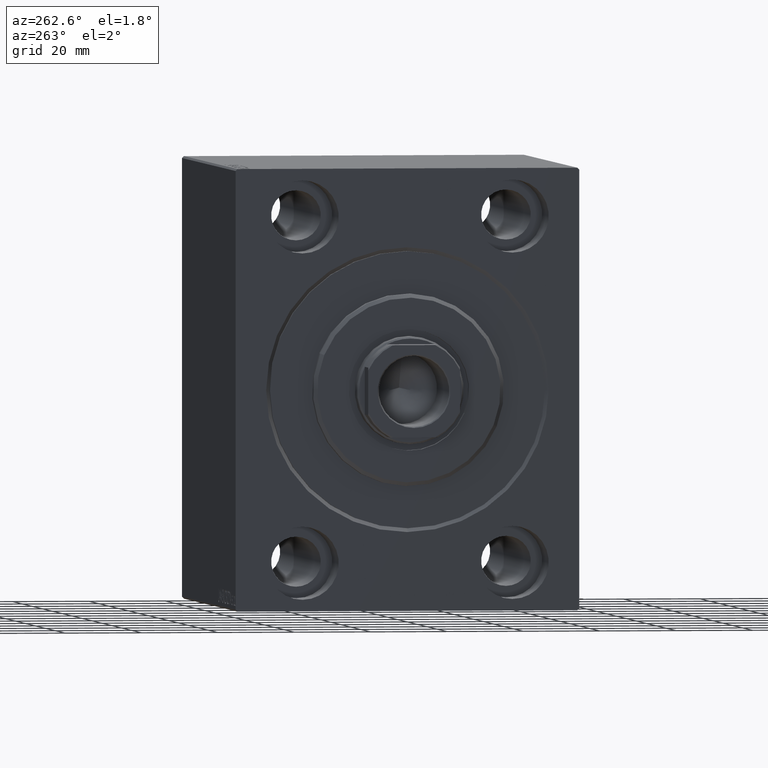
[diagram: clean part render]
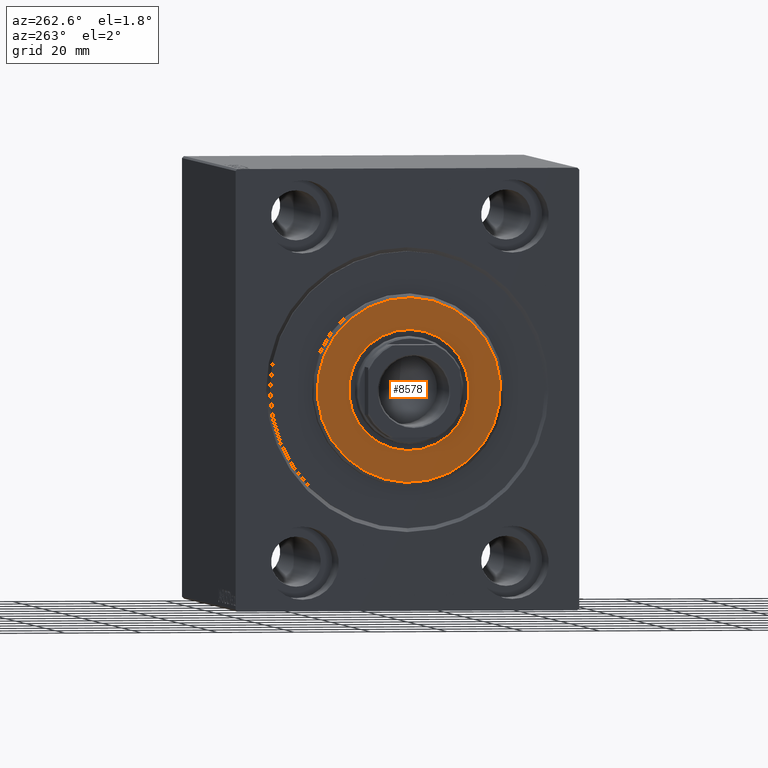
[diagram: same view with one face highlighted and labeled with its STEP entity id]
A machine part, auxiliary view. The second image highlights one B-rep face of the part: STEP entity #8578.
In plain terms, the highlighted planar face has unit normal (-1, 0, 0).
Its self-contained STEP definition (entity closure, byte-faithful):
#1301 = DIRECTION ( 'NONE',  ( 1.000000000000000000, -0.000000000000000000, 0.000000000000000000 ) ) ;
#1456 = EDGE_CURVE ( 'NONE', #33677, #15201, #41150, .T. ) ;
#2682 = DIRECTION ( 'NONE',  ( 0.000000000000000000, 0.000000000000000000, -1.000000000000000000 ) ) ;
#3515 = DIRECTION ( 'NONE',  ( 0.000000000000000000, 0.000000000000000000, -1.000000000000000000 ) ) ;
#3744 = CARTESIAN_POINT ( 'NONE',  ( 3.000000000000000000, 0.000000000000000000, 15.75000000000000000 ) ) ;
#4332 = CARTESIAN_POINT ( 'NONE',  ( 3.000000000000000000, 0.000000000000000000, 24.00000000000000711 ) ) ;
#5420 = ORIENTED_EDGE ( 'NONE', *, *, #37104, .T. ) ;
#6376 = EDGE_LOOP ( 'NONE', ( #5420, #11575 ) ) ;
#8578 = ADVANCED_FACE ( 'NONE', ( #29902, #25895 ), #32344, .T. ) ;
#9120 = AXIS2_PLACEMENT_3D ( 'NONE', #13701, #10141, #19973 ) ;
#9889 = EDGE_CURVE ( 'NONE', #11756, #29369, #26391, .T. ) ;
#10141 = DIRECTION ( 'NONE',  ( -1.000000000000000000, 0.000000000000000000, -0.000000000000000000 ) ) ;
#10258 = CARTESIAN_POINT ( 'NONE',  ( 3.000000000000000000, 3.000384657911015469E-15, -24.00000000000000711 ) ) ;
#10435 = DIRECTION ( 'NONE',  ( 1.000000000000000000, -0.000000000000000000, 0.000000000000000000 ) ) ;
#11575 = ORIENTED_EDGE ( 'NONE', *, *, #1456, .T. ) ;
#11756 = VERTEX_POINT ( 'NONE', #4332 ) ;
#13701 = CARTESIAN_POINT ( 'NONE',  ( 3.000000000000000000, 0.000000000000000000, 0.000000000000000000 ) ) ;
#14244 = AXIS2_PLACEMENT_3D ( 'NONE', #29679, #15400, #2682 ) ;
#15201 = VERTEX_POINT ( 'NONE', #3744 ) ;
#15400 = DIRECTION ( 'NONE',  ( 1.000000000000000000, -0.000000000000000000, 0.000000000000000000 ) ) ;
#16617 = DIRECTION ( 'NONE',  ( 0.000000000000000000, 0.000000000000000000, -1.000000000000000000 ) ) ;
#18311 = CIRCLE ( 'NONE', #43232, 24.00000000000000711 ) ;
#19973 = DIRECTION ( 'NONE',  ( 0.000000000000000000, 0.000000000000000000, -1.000000000000000000 ) ) ;
#20226 = EDGE_LOOP ( 'NONE', ( #33603, #26397 ) ) ;
#20496 = AXIS2_PLACEMENT_3D ( 'NONE', #26657, #33562, #16617 ) ;
#23356 = CIRCLE ( 'NONE', #9120, 15.75000000000000000 ) ;
#25390 = DIRECTION ( 'NONE',  ( 0.000000000000000000, 0.000000000000000000, -1.000000000000000000 ) ) ;
#25895 = FACE_BOUND ( 'NONE', #6376, .T. ) ;
#26391 = CIRCLE ( 'NONE', #38507, 24.00000000000000711 ) ;
#26397 = ORIENTED_EDGE ( 'NONE', *, *, #31278, .T. ) ;
#26657 = CARTESIAN_POINT ( 'NONE',  ( 3.000000000000000000, 0.000000000000000000, 0.000000000000000000 ) ) ;
#27166 = CARTESIAN_POINT ( 'NONE',  ( 3.000000000000000000, 0.000000000000000000, 0.000000000000000000 ) ) ;
#29369 = VERTEX_POINT ( 'NONE', #10258 ) ;
#29679 = CARTESIAN_POINT ( 'NONE',  ( 3.000000000000000000, 0.000000000000000000, 0.000000000000000000 ) ) ;
#29902 = FACE_OUTER_BOUND ( 'NONE', #20226, .T. ) ;
#31278 = EDGE_CURVE ( 'NONE', #29369, #11756, #18311, .T. ) ;
#32076 = CARTESIAN_POINT ( 'NONE',  ( 3.000000000000000000, 0.000000000000000000, 0.000000000000000000 ) ) ;
#32344 = PLANE ( 'NONE',  #14244 ) ;
#33562 = DIRECTION ( 'NONE',  ( -1.000000000000000000, 0.000000000000000000, -0.000000000000000000 ) ) ;
#33603 = ORIENTED_EDGE ( 'NONE', *, *, #9889, .T. ) ;
#33677 = VERTEX_POINT ( 'NONE', #42631 ) ;
#37104 = EDGE_CURVE ( 'NONE', #15201, #33677, #23356, .T. ) ;
#38507 = AXIS2_PLACEMENT_3D ( 'NONE', #27166, #10435, #3515 ) ;
#41150 = CIRCLE ( 'NONE', #20496, 15.75000000000000000 ) ;
#42631 = CARTESIAN_POINT ( 'NONE',  ( 3.000000000000000000, 1.928818708657080950E-15, -15.75000000000000000 ) ) ;
#43232 = AXIS2_PLACEMENT_3D ( 'NONE', #32076, #1301, #25390 ) ;